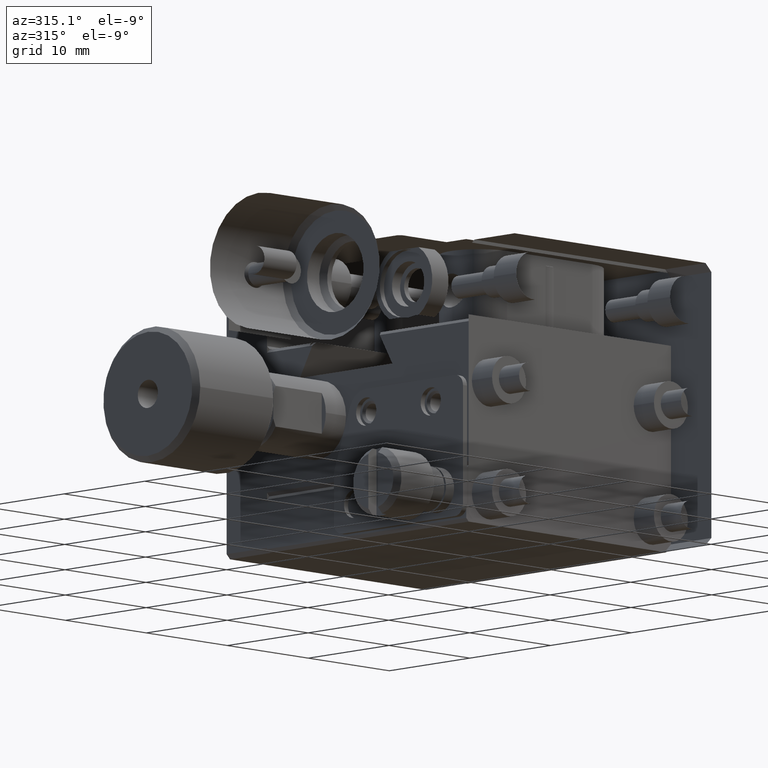
[diagram: clean part render]
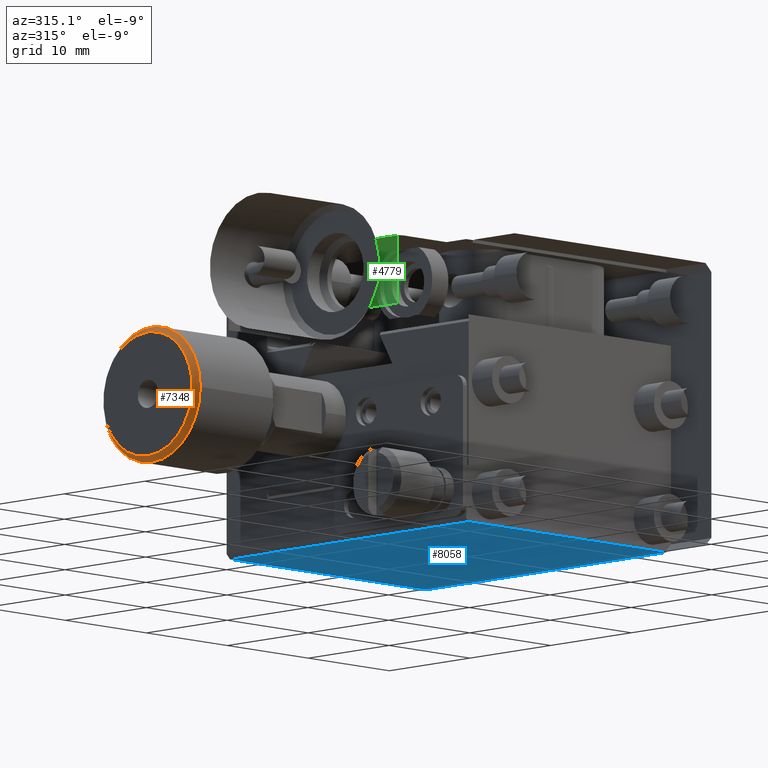
[diagram: same view with three faces highlighted in distinct colors, each labeled with its STEP entity id]
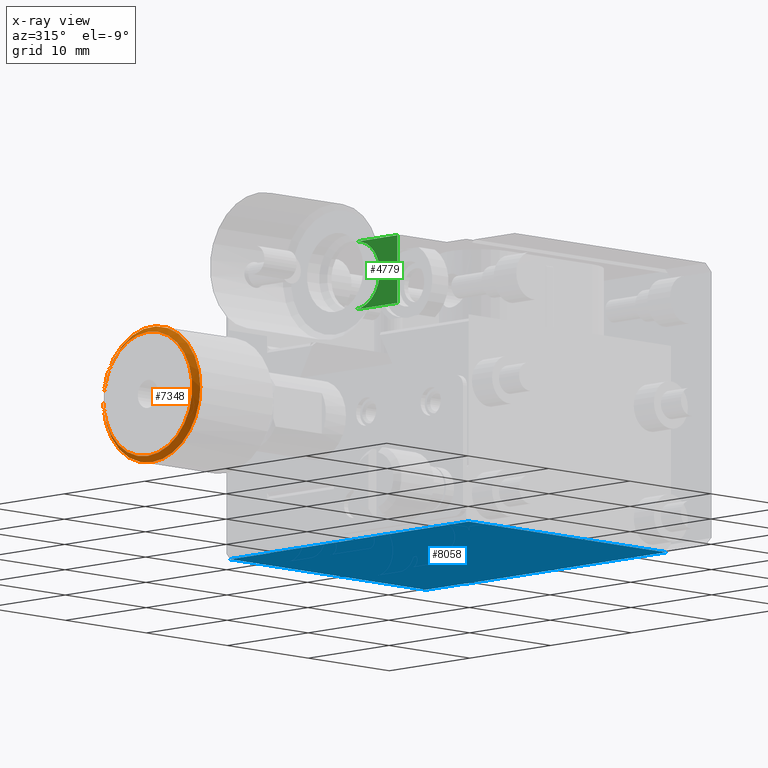
[diagram: x-ray of the same camera — body ghosted, the three highlighted faces saturated]
A machine part, auxiliary view with three faces highlighted in distinct colors.
The next image is the same camera in x-ray (body ghosted, the three faces saturated) — at least one of them is partly hidden behind the body in this view.
Their STEP definitions:

[orange] entity #7348 — the highlighted conical surface has half-angle 45 deg.
#237 = CARTESIAN_POINT ( 'NONE',  ( -21.00000000001500666, 38.69999999999999574, -19.49999999995070254 ) ) ;
#291 = VERTEX_POINT ( 'NONE', #383 ) ;
#383 = CARTESIAN_POINT ( 'NONE',  ( -20.50000000000000000, 32.70000000000000995, -14.00000000000000000 ) ) ;
#1210 = CIRCLE ( 'NONE', #3952, 5.999999999999998224 ) ;
#1380 = DIRECTION ( 'NONE',  ( 1.000000000000000000, 0.000000000000000000, 0.000000000000000000 ) ) ;
#1398 = AXIS2_PLACEMENT_3D ( 'NONE', #2150, #8655, #5953 ) ;
#2150 = CARTESIAN_POINT ( 'NONE',  ( -21.00000000001500666, 38.69999999999999574, -14.00000000000000000 ) ) ;
#2247 = CARTESIAN_POINT ( 'NONE',  ( -20.50000000000000000, 38.70000000000000284, -14.00000000000000000 ) ) ;
#2461 = AXIS2_PLACEMENT_3D ( 'NONE', #4231, #1380, #9253 ) ;
#2606 = CONICAL_SURFACE ( 'NONE', #2461, 5.999999999938879114, 0.7853981633406048601 ) ;
#3952 = AXIS2_PLACEMENT_3D ( 'NONE', #2247, #5910, #8087 ) ;
#4133 = EDGE_CURVE ( 'NONE', #291, #291, #1210, .T. ) ;
#4138 = FACE_BOUND ( 'NONE', #7530, .T. ) ;
#4231 = CARTESIAN_POINT ( 'NONE',  ( -20.49999999996998667, 38.69999999999999574, -14.00000000000000000 ) ) ;
#4590 = CIRCLE ( 'NONE', #1398, 5.499999999950702545 ) ;
#5750 = FACE_OUTER_BOUND ( 'NONE', #8041, .T. ) ;
#5772 = ORIENTED_EDGE ( 'NONE', *, *, #7065, .T. ) ;
#5910 = DIRECTION ( 'NONE',  ( 1.000000000000000000, 1.040834085586079943E-16, -0.000000000000000000 ) ) ;
#5936 = VERTEX_POINT ( 'NONE', #237 ) ;
#5953 = DIRECTION ( 'NONE',  ( 0.000000000000000000, 0.000000000000000000, -1.000000000000000000 ) ) ;
#7065 = EDGE_CURVE ( 'NONE', #5936, #5936, #4590, .T. ) ;
#7348 = ADVANCED_FACE ( 'NONE', ( #5750, #4138 ), #2606, .T. ) ;
#7530 = EDGE_LOOP ( 'NONE', ( #5772 ) ) ;
#8041 = EDGE_LOOP ( 'NONE', ( #8196 ) ) ;
#8087 = DIRECTION ( 'NONE',  ( 0.000000000000000000, -1.000000000000000000, 0.000000000000000000 ) ) ;
#8196 = ORIENTED_EDGE ( 'NONE', *, *, #4133, .F. ) ;
#8655 = DIRECTION ( 'NONE',  ( 1.000000000000000000, 0.000000000000000000, 0.000000000000000000 ) ) ;
#9253 = DIRECTION ( 'NONE',  ( 0.000000000000000000, 0.000000000000000000, -1.000000000000000000 ) ) ;

[blue] entity #8058 — the highlighted planar face has unit normal (0, 0, -1).
#225 = VERTEX_POINT ( 'NONE', #5022 ) ;
#232 = EDGE_LOOP ( 'NONE', ( #2650, #878, #8647, #315, #6173, #5681, #4333, #8940 ) ) ;
#315 = ORIENTED_EDGE ( 'NONE', *, *, #6571, .T. ) ;
#339 = VECTOR ( 'NONE', #7522, 1000.000000000000000 ) ;
#878 = ORIENTED_EDGE ( 'NONE', *, *, #6545, .T. ) ;
#902 = LINE ( 'NONE', #3739, #2274 ) ;
#981 = CARTESIAN_POINT ( 'NONE',  ( 24.58999999999999986, 45.00000000000000711, -25.00000000000000000 ) ) ;
#986 = EDGE_CURVE ( 'NONE', #4247, #2994, #4630, .T. ) ;
#996 = EDGE_CURVE ( 'NONE', #5678, #2204, #2395, .T. ) ;
#1214 = LINE ( 'NONE', #1883, #8601 ) ;
#1258 = EDGE_CURVE ( 'NONE', #2204, #7725, #5092, .T. ) ;
#1363 = DIRECTION ( 'NONE',  ( -1.000000000000000000, 0.000000000000000000, 0.000000000000000000 ) ) ;
#1366 = CARTESIAN_POINT ( 'NONE',  ( 24.58999999999999986, 45.00000000000000711, -25.00000000000000000 ) ) ;
#1379 = CARTESIAN_POINT ( 'NONE',  ( 0.4100000000000006417, 45.00000000000000711, -25.00000000000000000 ) ) ;
#1465 = VECTOR ( 'NONE', #3112, 1000.000000000000000 ) ;
#1644 = DIRECTION ( 'NONE',  ( 0.000000000000000000, 0.000000000000000000, -1.000000000000000000 ) ) ;
#1682 = CARTESIAN_POINT ( 'NONE',  ( 0.3000000000000104805, 20.30000000000000071, -25.00000000000000000 ) ) ;
#1729 = DIRECTION ( 'NONE',  ( -0.000000000000000000, -1.000000000000000000, -0.000000000000000000 ) ) ;
#1883 = CARTESIAN_POINT ( 'NONE',  ( 0.3000000000000120348, 45.00000000000000711, -25.00000000000000000 ) ) ;
#2119 = EDGE_CURVE ( 'NONE', #6532, #225, #1214, .T. ) ;
#2204 = VERTEX_POINT ( 'NONE', #7297 ) ;
#2274 = VECTOR ( 'NONE', #7361, 1000.000000000000000 ) ;
#2395 = LINE ( 'NONE', #7387, #9046 ) ;
#2482 = DIRECTION ( 'NONE',  ( 1.000000000000000000, -0.000000000000000000, -0.000000000000000000 ) ) ;
#2650 = ORIENTED_EDGE ( 'NONE', *, *, #3846, .T. ) ;
#2994 = VERTEX_POINT ( 'NONE', #8333 ) ;
#3041 = VECTOR ( 'NONE', #1363, 1000.000000000000000 ) ;
#3064 = CARTESIAN_POINT ( 'NONE',  ( 24.58999999999999986, 50.00000000000000000, -25.00000000000000000 ) ) ;
#3112 = DIRECTION ( 'NONE',  ( 1.000000000000000000, -0.000000000000000000, -0.000000000000000000 ) ) ;
#3532 = VECTOR ( 'NONE', #1729, 1000.000000000000000 ) ;
#3739 = CARTESIAN_POINT ( 'NONE',  ( 24.58999999999999986, 45.00000000000000711, -25.00000000000000000 ) ) ;
#3844 = AXIS2_PLACEMENT_3D ( 'NONE', #981, #1644, #8193 ) ;
#3846 = EDGE_CURVE ( 'NONE', #225, #5200, #902, .T. ) ;
#4247 = VERTEX_POINT ( 'NONE', #4438 ) ;
#4333 = ORIENTED_EDGE ( 'NONE', *, *, #4850, .T. ) ;
#4438 = CARTESIAN_POINT ( 'NONE',  ( 0.4100000000000000866, 50.00000000000000000, -25.00000000000000000 ) ) ;
#4630 = LINE ( 'NONE', #3064, #1465 ) ;
#4850 = EDGE_CURVE ( 'NONE', #7725, #6532, #8674, .T. ) ;
#4874 = CARTESIAN_POINT ( 'NONE',  ( 24.69999999999999929, 20.30000000000000071, -24.99999999999999645 ) ) ;
#5022 = CARTESIAN_POINT ( 'NONE',  ( 0.3000000000000113132, 45.00000000000001421, -25.00000000000000000 ) ) ;
#5092 = LINE ( 'NONE', #6373, #7682 ) ;
#5200 = VERTEX_POINT ( 'NONE', #1379 ) ;
#5427 = CARTESIAN_POINT ( 'NONE',  ( 24.58999999999999986, 45.00000000000000711, -25.00000000000000000 ) ) ;
#5564 = CARTESIAN_POINT ( 'NONE',  ( 0.4100000000000006417, 45.00000000000000711, -25.00000000000000000 ) ) ;
#5678 = VERTEX_POINT ( 'NONE', #1366 ) ;
#5681 = ORIENTED_EDGE ( 'NONE', *, *, #1258, .T. ) ;
#6173 = ORIENTED_EDGE ( 'NONE', *, *, #996, .T. ) ;
#6280 = LINE ( 'NONE', #5564, #339 ) ;
#6373 = CARTESIAN_POINT ( 'NONE',  ( 24.69999999999999929, 45.00000000000000711, -25.00000000000000000 ) ) ;
#6532 = VERTEX_POINT ( 'NONE', #1682 ) ;
#6545 = EDGE_CURVE ( 'NONE', #5200, #4247, #6280, .T. ) ;
#6571 = EDGE_CURVE ( 'NONE', #2994, #5678, #7571, .T. ) ;
#7297 = CARTESIAN_POINT ( 'NONE',  ( 24.69999999999999929, 45.00000000000000000, -24.99999999999999645 ) ) ;
#7361 = DIRECTION ( 'NONE',  ( 1.000000000000000000, -0.000000000000000000, -0.000000000000000000 ) ) ;
#7387 = CARTESIAN_POINT ( 'NONE',  ( 24.58999999999999986, 45.00000000000000711, -25.00000000000000000 ) ) ;
#7393 = PLANE ( 'NONE',  #3844 ) ;
#7522 = DIRECTION ( 'NONE',  ( 0.000000000000000000, 1.000000000000000000, 0.000000000000000000 ) ) ;
#7571 = LINE ( 'NONE', #5427, #3532 ) ;
#7682 = VECTOR ( 'NONE', #7841, 1000.000000000000000 ) ;
#7725 = VERTEX_POINT ( 'NONE', #4874 ) ;
#7841 = DIRECTION ( 'NONE',  ( -0.000000000000000000, -1.000000000000000000, -0.000000000000000000 ) ) ;
#8058 = ADVANCED_FACE ( 'NONE', ( #8147 ), #7393, .T. ) ;
#8147 = FACE_OUTER_BOUND ( 'NONE', #232, .T. ) ;
#8193 = DIRECTION ( 'NONE',  ( -1.000000000000000000, 0.000000000000000000, 0.000000000000000000 ) ) ;
#8333 = CARTESIAN_POINT ( 'NONE',  ( 24.59000000000000696, 50.00000000000000000, -24.99999999999999645 ) ) ;
#8573 = CARTESIAN_POINT ( 'NONE',  ( 24.58999999999999986, 20.30000000000000071, -25.00000000000000000 ) ) ;
#8601 = VECTOR ( 'NONE', #9277, 1000.000000000000000 ) ;
#8647 = ORIENTED_EDGE ( 'NONE', *, *, #986, .T. ) ;
#8674 = LINE ( 'NONE', #8573, #3041 ) ;
#8940 = ORIENTED_EDGE ( 'NONE', *, *, #2119, .T. ) ;
#9046 = VECTOR ( 'NONE', #2482, 1000.000000000000000 ) ;
#9277 = DIRECTION ( 'NONE',  ( 0.000000000000000000, 1.000000000000000000, 0.000000000000000000 ) ) ;

[green] entity #4779 — the highlighted planar face has unit normal (1, 0, 0).
#173 = DIRECTION ( 'NONE',  ( 0.000000000000000000, 1.000000000000000000, 0.000000000000000000 ) ) ;
#316 = AXIS2_PLACEMENT_3D ( 'NONE', #9285, #4168, #2739 ) ;
#746 = CARTESIAN_POINT ( 'NONE',  ( -8.000000000000000000, 20.80000000000000782, -6.500000000000001776 ) ) ;
#1230 = LINE ( 'NONE', #1989, #4471 ) ;
#1290 = ORIENTED_EDGE ( 'NONE', *, *, #8837, .T. ) ;
#1369 = EDGE_LOOP ( 'NONE', ( #5239, #4942, #3684, #1290 ) ) ;
#1989 = CARTESIAN_POINT ( 'NONE',  ( -8.000000000000000000, 20.80000000000000782, -6.500000000000000888 ) ) ;
#2259 = VERTEX_POINT ( 'NONE', #746 ) ;
#2530 = DIRECTION ( 'NONE',  ( -1.000000000000000000, 0.000000000000000000, 0.000000000000000000 ) ) ;
#2577 = CARTESIAN_POINT ( 'NONE',  ( -8.000000000000000000, 26.00000000000000000, -3.500000000000000000 ) ) ;
#2739 = DIRECTION ( 'NONE',  ( 0.000000000000000000, 0.000000000000000000, -1.000000000000000000 ) ) ;
#2757 = AXIS2_PLACEMENT_3D ( 'NONE', #2577, #2530, #8327 ) ;
#2970 = LINE ( 'NONE', #8947, #8070 ) ;
#3073 = VECTOR ( 'NONE', #8278, 1000.000000000000000 ) ;
#3684 = ORIENTED_EDGE ( 'NONE', *, *, #6462, .F. ) ;
#4058 = CARTESIAN_POINT ( 'NONE',  ( -8.000000000000000000, 15.00000000000000000, -6.500000000000000888 ) ) ;
#4168 = DIRECTION ( 'NONE',  ( 1.000000000000000000, 0.000000000000000000, 0.000000000000000000 ) ) ;
#4213 = PLANE ( 'NONE',  #316 ) ;
#4471 = VECTOR ( 'NONE', #5547, 1000.000000000000000 ) ;
#4779 = ADVANCED_FACE ( 'NONE', ( #7961 ), #4213, .T. ) ;
#4942 = ORIENTED_EDGE ( 'NONE', *, *, #6769, .T. ) ;
#5091 = VERTEX_POINT ( 'NONE', #5648 ) ;
#5239 = ORIENTED_EDGE ( 'NONE', *, *, #6818, .T. ) ;
#5547 = DIRECTION ( 'NONE',  ( 0.000000000000000000, 0.000000000000000000, -1.000000000000000000 ) ) ;
#5648 = CARTESIAN_POINT ( 'NONE',  ( -8.000000000000000000, 26.00000000000000000, -0.5000000000000000000 ) ) ;
#6391 = CARTESIAN_POINT ( 'NONE',  ( -8.000000000000000000, 26.00000000000000000, -6.500000000000000888 ) ) ;
#6462 = EDGE_CURVE ( 'NONE', #8788, #5091, #2970, .T. ) ;
#6769 = EDGE_CURVE ( 'NONE', #7898, #5091, #7160, .T. ) ;
#6818 = EDGE_CURVE ( 'NONE', #2259, #7898, #9084, .T. ) ;
#7160 = CIRCLE ( 'NONE', #2757, 3.000000000000000000 ) ;
#7823 = CARTESIAN_POINT ( 'NONE',  ( -8.000000000000000000, 20.80000000000000782, -0.5000000000000003331 ) ) ;
#7898 = VERTEX_POINT ( 'NONE', #6391 ) ;
#7961 = FACE_OUTER_BOUND ( 'NONE', #1369, .T. ) ;
#8070 = VECTOR ( 'NONE', #173, 1000.000000000000000 ) ;
#8278 = DIRECTION ( 'NONE',  ( 0.000000000000000000, 1.000000000000000000, 0.000000000000000000 ) ) ;
#8327 = DIRECTION ( 'NONE',  ( 0.000000000000000000, 0.000000000000000000, 1.000000000000000000 ) ) ;
#8788 = VERTEX_POINT ( 'NONE', #7823 ) ;
#8837 = EDGE_CURVE ( 'NONE', #8788, #2259, #1230, .T. ) ;
#8947 = CARTESIAN_POINT ( 'NONE',  ( -8.000000000000000000, 15.00000000000000000, -0.5000000000000000000 ) ) ;
#9084 = LINE ( 'NONE', #4058, #3073 ) ;
#9285 = CARTESIAN_POINT ( 'NONE',  ( -8.000000000000000000, 20.80000000000000782, -6.500000000000000888 ) ) ;